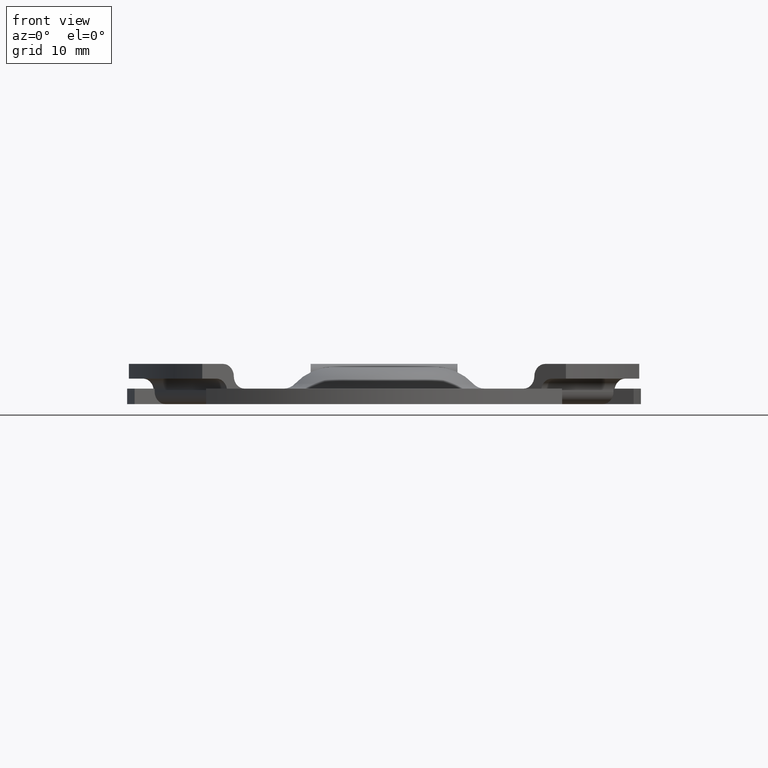
[diagram: clean part render]
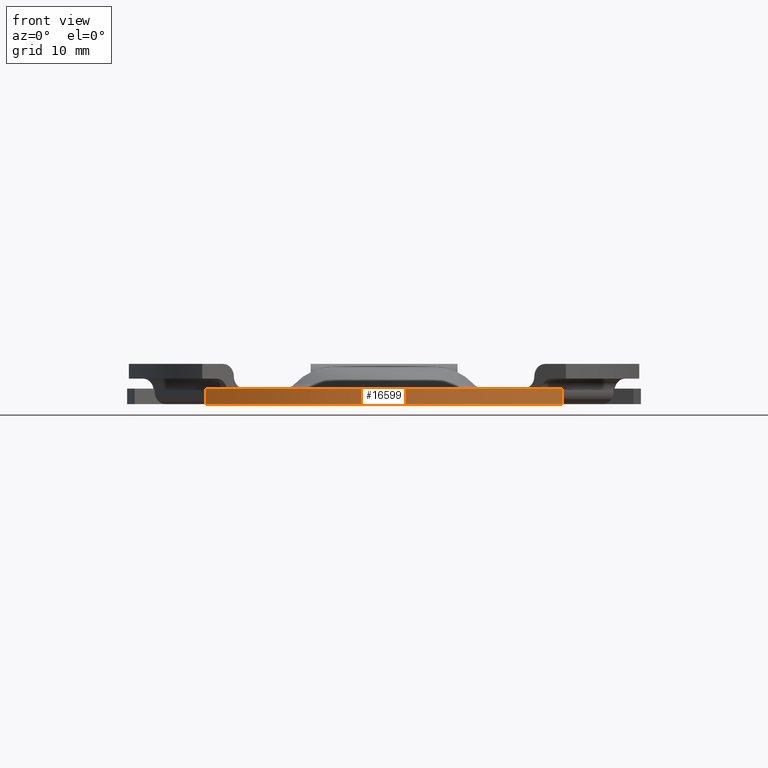
[diagram: same view with one face highlighted and labeled with its STEP entity id]
A machine part, front view. The second image highlights one B-rep face of the part: STEP entity #16599.
In plain terms, the highlighted cylindrical surface (partial cylindrical patch) has radius 33.25 mm, axis along (-0, -0, -1).
Its self-contained STEP definition (entity closure, byte-faithful):
#165 = ORIENTED_EDGE ( 'NONE', *, *, #13268, .T. ) ;
#425 = VERTEX_POINT ( 'NONE', #13483 ) ;
#613 = ORIENTED_EDGE ( 'NONE', *, *, #11447, .F. ) ;
#1115 = DIRECTION ( 'NONE',  ( -0.000000000000000000, 0.000000000000000000, 1.000000000000000000 ) ) ;
#1628 = DIRECTION ( 'NONE',  ( -0.000000000000000000, -0.000000000000000000, -1.000000000000000000 ) ) ;
#2026 = DIRECTION ( 'NONE',  ( 1.000000000000000000, 0.000000000000000000, 0.000000000000000000 ) ) ;
#2950 = FACE_OUTER_BOUND ( 'NONE', #16795, .T. ) ;
#4178 = CARTESIAN_POINT ( 'NONE',  ( 0.000000000000000000, 0.000000000000000000, 2.000000000000000000 ) ) ;
#4412 = DIRECTION ( 'NONE',  ( 0.000000000000000000, 0.000000000000000000, 1.000000000000000000 ) ) ;
#4432 = CARTESIAN_POINT ( 'NONE',  ( 0.000000000000000000, 0.000000000000000000, 0.000000000000000000 ) ) ;
#5669 = VECTOR ( 'NONE', #11251, 1000.000000000000000 ) ;
#5748 = DIRECTION ( 'NONE',  ( 0.000000000000000000, 0.000000000000000000, 1.000000000000000000 ) ) ;
#5894 = ORIENTED_EDGE ( 'NONE', *, *, #9091, .T. ) ;
#6999 = DIRECTION ( 'NONE',  ( -1.000000000000000000, 0.000000000000000000, 0.000000000000000000 ) ) ;
#7347 = CARTESIAN_POINT ( 'NONE',  ( -23.03363337187856175, -23.97945440767747982, 0.000000000000000000 ) ) ;
#7562 = CARTESIAN_POINT ( 'NONE',  ( 23.03363337187888504, -23.97945440767715297, 2.000000000000000000 ) ) ;
#7585 = CARTESIAN_POINT ( 'NONE',  ( 23.03363337187888504, -23.97945440767715297, 0.000000000000000000 ) ) ;
#7864 = CIRCLE ( 'NONE', #9469, 33.25000000000000000 ) ;
#8474 = CIRCLE ( 'NONE', #8648, 33.25000000000000000 ) ;
#8648 = AXIS2_PLACEMENT_3D ( 'NONE', #4432, #5748, #14937 ) ;
#9091 = EDGE_CURVE ( 'NONE', #11817, #10648, #8474, .T. ) ;
#9346 = VECTOR ( 'NONE', #1115, 1000.000000000000000 ) ;
#9469 = AXIS2_PLACEMENT_3D ( 'NONE', #14919, #4412, #2026 ) ;
#9925 = CYLINDRICAL_SURFACE ( 'NONE', #12367, 33.25000000000000000 ) ;
#10553 = CARTESIAN_POINT ( 'NONE',  ( 23.03363337187888504, -23.97945440767715297, 0.000000000000000000 ) ) ;
#10648 = VERTEX_POINT ( 'NONE', #10553 ) ;
#11251 = DIRECTION ( 'NONE',  ( 0.000000000000000000, -0.000000000000000000, 1.000000000000000000 ) ) ;
#11435 = LINE ( 'NONE', #7347, #5669 ) ;
#11447 = EDGE_CURVE ( 'NONE', #11817, #425, #11435, .T. ) ;
#11817 = VERTEX_POINT ( 'NONE', #14615 ) ;
#12301 = ORIENTED_EDGE ( 'NONE', *, *, #16621, .F. ) ;
#12367 = AXIS2_PLACEMENT_3D ( 'NONE', #4178, #1628, #6999 ) ;
#13268 = EDGE_CURVE ( 'NONE', #10648, #16875, #13444, .T. ) ;
#13444 = LINE ( 'NONE', #7585, #9346 ) ;
#13483 = CARTESIAN_POINT ( 'NONE',  ( -23.03363337187856175, -23.97945440767747982, 2.000000000000000000 ) ) ;
#14615 = CARTESIAN_POINT ( 'NONE',  ( -23.03363337187856175, -23.97945440767747982, 0.000000000000000000 ) ) ;
#14919 = CARTESIAN_POINT ( 'NONE',  ( 0.000000000000000000, 0.000000000000000000, 2.000000000000000000 ) ) ;
#14937 = DIRECTION ( 'NONE',  ( 1.000000000000000000, 0.000000000000000000, 0.000000000000000000 ) ) ;
#16599 = ADVANCED_FACE ( 'NONE', ( #2950 ), #9925, .T. ) ;
#16621 = EDGE_CURVE ( 'NONE', #425, #16875, #7864, .T. ) ;
#16795 = EDGE_LOOP ( 'NONE', ( #5894, #165, #12301, #613 ) ) ;
#16875 = VERTEX_POINT ( 'NONE', #7562 ) ;